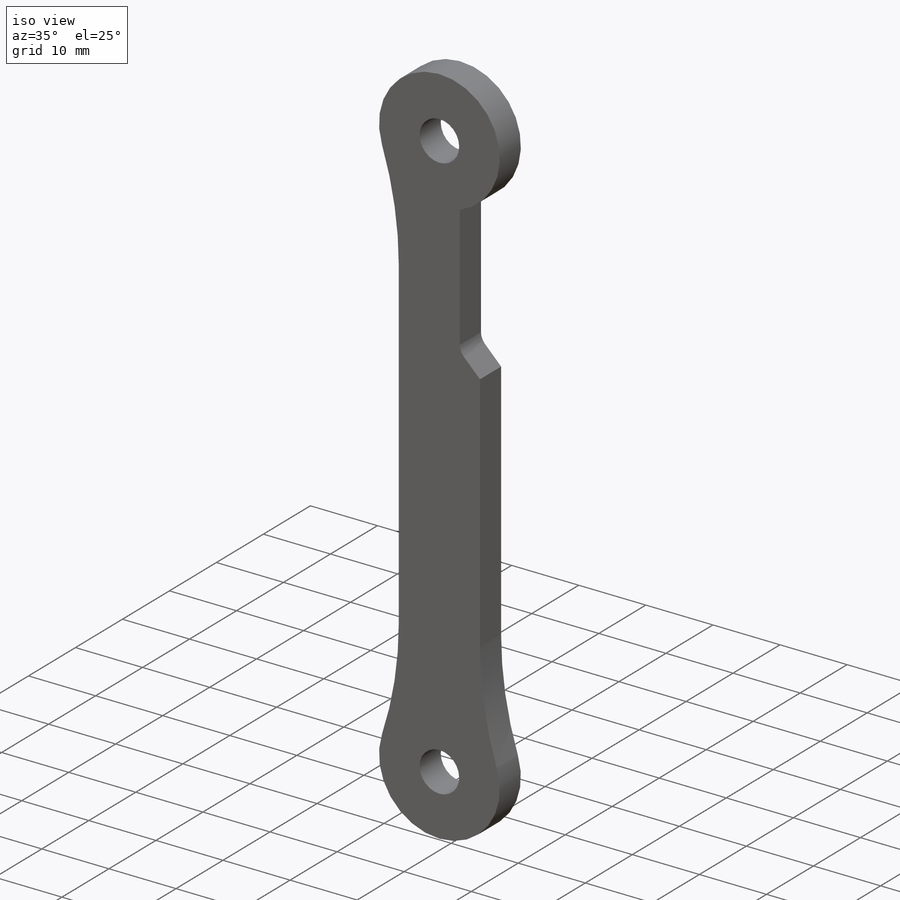
[diagram: iso view]
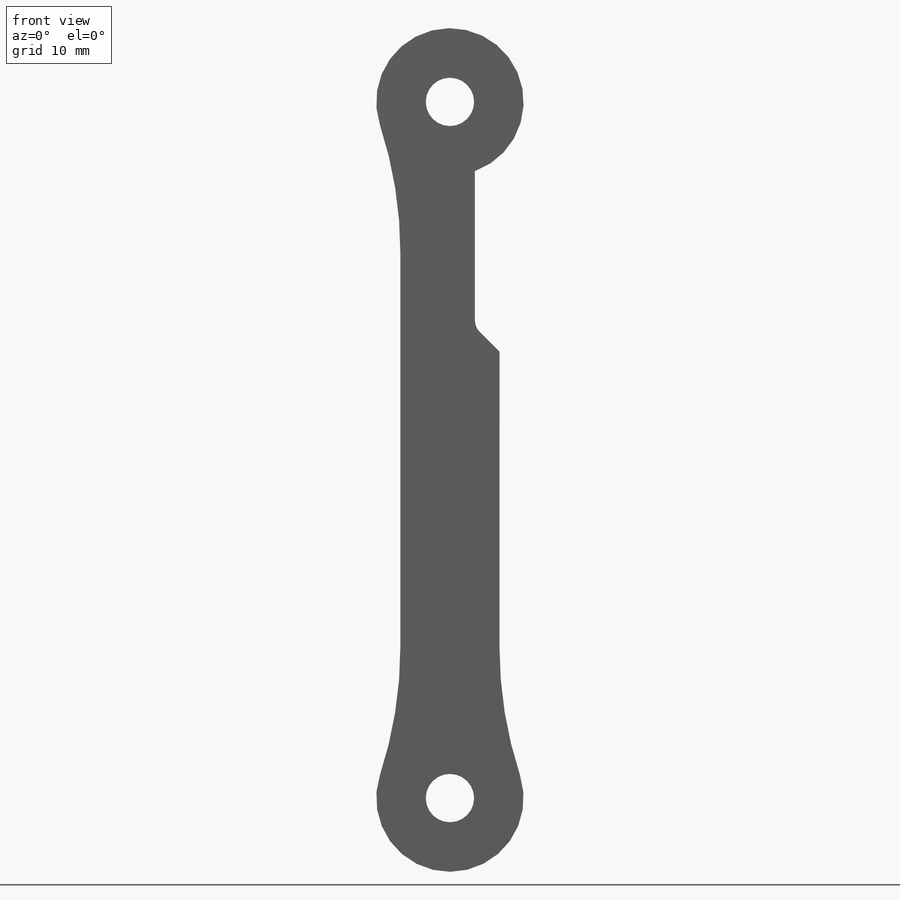
[diagram: front view]
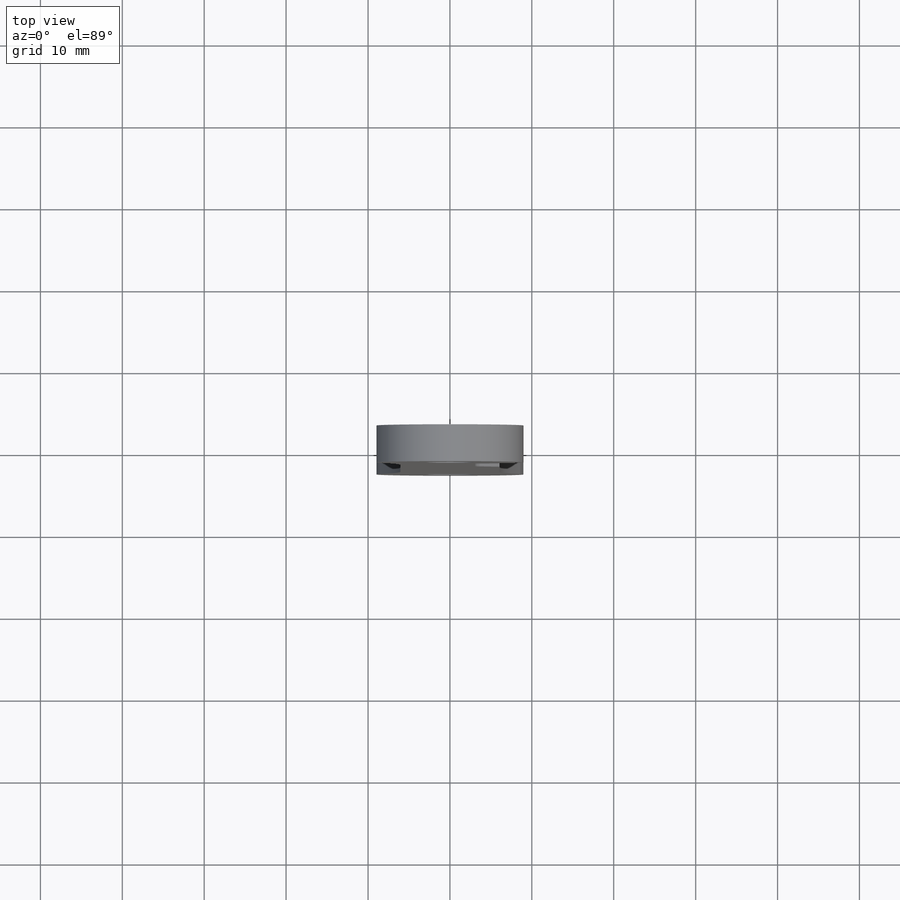
[diagram: top view]
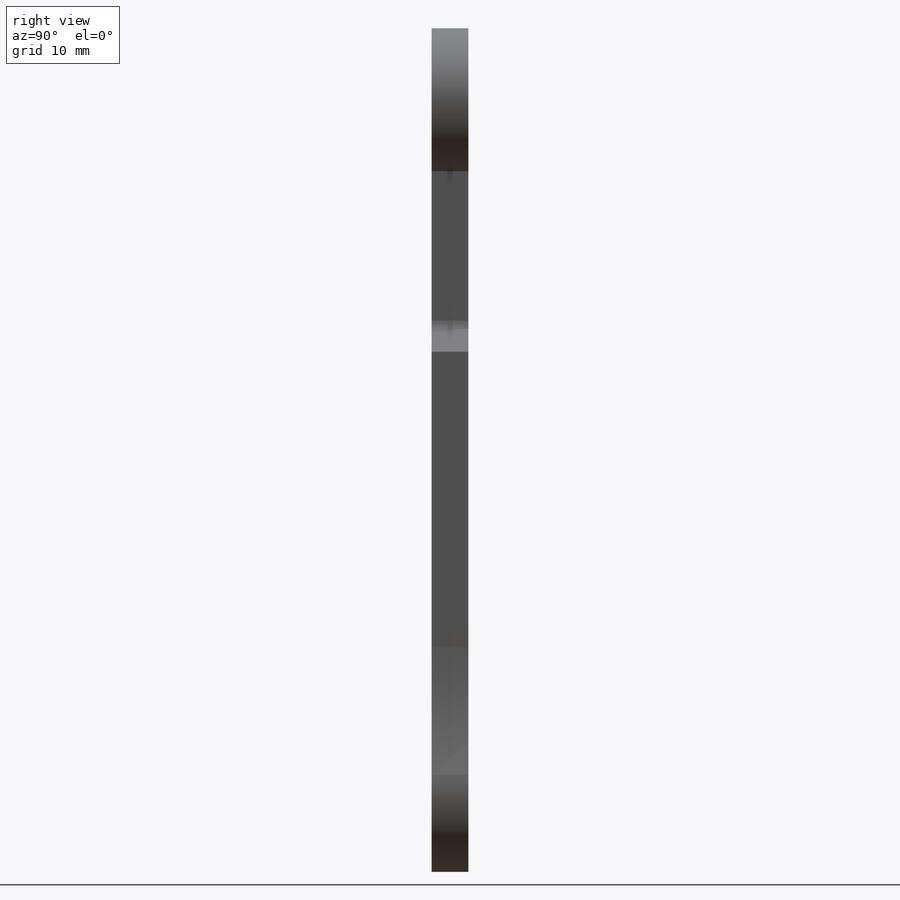
[diagram: right view]
SOLIDWORKS PART (.sldprt)
format: sldprt  version: not decoded by parser v0  size: 236,032 bytes
history: native  units: mm
features: sketch x4, extrude x3, fillet x2, material x1, pattern_linear x1, cut_extrude x1, chamfer x1 (+12 scaffold rows collapsed)
feature tree (25):
  scaffold x12  (default folders/planes/origin — collapsed)
  material  "POM copolymère d'acétal"
  sketch  "Sketch1"  dims[c1.D2=6.05mm c1.D3=5.9mm c1.D1=85.0mm c2.D2=63.0mm]
  extrude  "Boss-Extrude1"  Depth=2.5mm
  sketch  "Sketch3"  dims[D1=0.5mm D2=0.5mm]
  extrude  "Boss-Extrude2"  Depth=0.8mm
  pattern_linear  "LPattern1"  Count1=3 Count2=3 Spacing1=8mm Spacing2=8mm
  sketch  "Sketch9"  dims[D1=4.0mm D2=3.0mm D3=15.0mm]
  cut_extrude  "Cut-Extrude2"  Depth=10mm
  chamfer  "Chamfer1"  Distance=3mm Angle=45deg
  fillet  "Fillet1"  Radius=2mm
  sketch  "Sketch11"  dims[D1=18.0mm D2=16.0mm]
  extrude  "Boss-Extrude3"  [1 undecoded]
  fillet  "Fillet2"  Radius=50mm
decode coverage: 11 of 12 modeling features carry decoded parameters
note: 1 parameter value undecoded
note: suppression state not decoded; provenance and decode notes live in map.json
